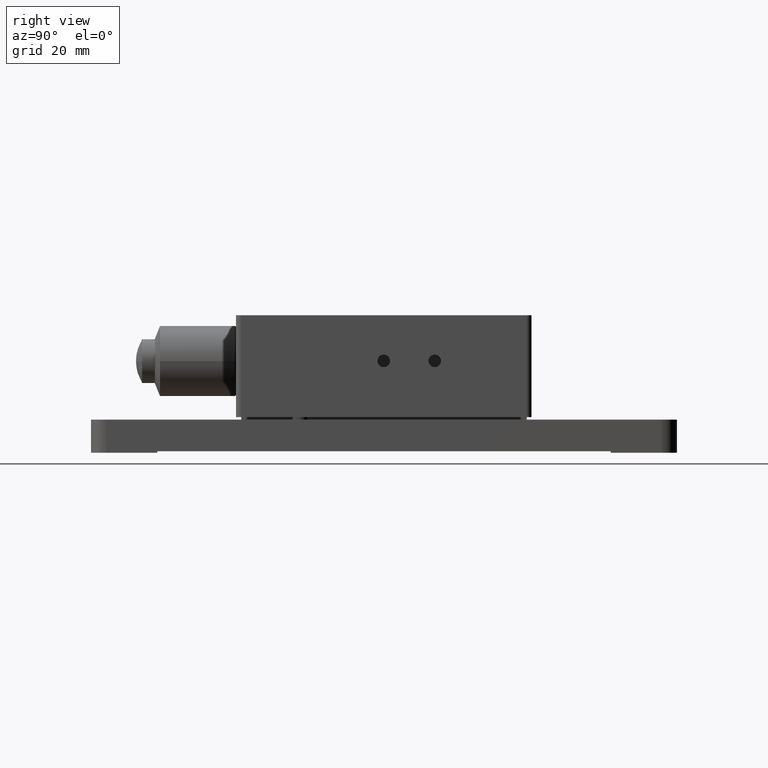
[diagram: clean part render]
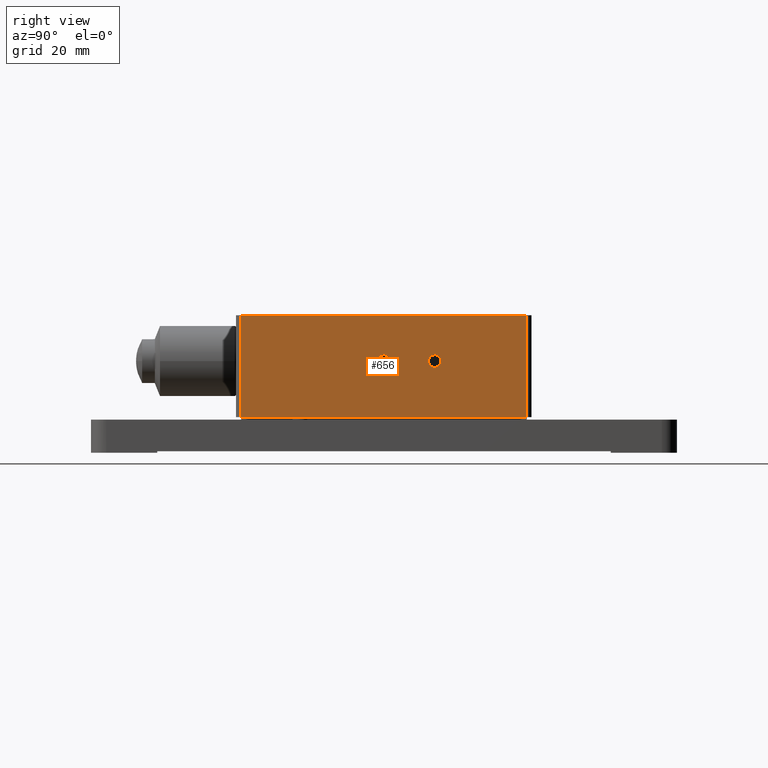
[diagram: same view with one face highlighted and labeled with its STEP entity id]
A machine part, right view. The second image highlights one B-rep face of the part: STEP entity #656.
In plain terms, the highlighted face is a freeform B-spline surface patch.
Its self-contained STEP definition (entity closure, byte-faithful):
#317=FACE_BOUND('',#1988,.T.);
#318=FACE_BOUND('',#1989,.T.);
#656=ADVANCED_FACE('',(#1277,#317,#318),#22470,.T.);
#1277=FACE_OUTER_BOUND('',#1987,.T.);
#1987=EDGE_LOOP('',(#4062,#4063,#4064,#4065));
#1988=EDGE_LOOP('',(#4066,#4067,#4068));
#1989=EDGE_LOOP('',(#4069,#4070,#4071));
#4062=ORIENTED_EDGE('',*,*,#19053,.F.);
#4063=ORIENTED_EDGE('',*,*,#18943,.F.);
#4064=ORIENTED_EDGE('',*,*,#19064,.T.);
#4065=ORIENTED_EDGE('',*,*,#19058,.F.);
#4066=ORIENTED_EDGE('',*,*,#19004,.F.);
#4067=ORIENTED_EDGE('',*,*,#19003,.F.);
#4068=ORIENTED_EDGE('',*,*,#19005,.F.);
#4069=ORIENTED_EDGE('',*,*,#19032,.F.);
#4070=ORIENTED_EDGE('',*,*,#19031,.F.);
#4071=ORIENTED_EDGE('',*,*,#19033,.F.);
#7212=PCURVE('',#22464,#10618);
#7290=PCURVE('',#22813,#10696);
#7295=PCURVE('',#22814,#10701);
#7296=PCURVE('',#22814,#10702);
#7365=PCURVE('',#22825,#10771);
#7370=PCURVE('',#22826,#10776);
#7371=PCURVE('',#22826,#10777);
#7449=PCURVE('',#22841,#10855);
#7456=PCURVE('',#22469,#10862);
#7468=PCURVE('',#22470,#10874);
#7469=PCURVE('',#22470,#10875);
#7470=PCURVE('',#22470,#10876);
#7471=PCURVE('',#22470,#10877);
#7472=PCURVE('',#22470,#10878);
#7473=PCURVE('',#22470,#10879);
#7474=PCURVE('',#22470,#10880);
#7475=PCURVE('',#22470,#10881);
#7476=PCURVE('',#22470,#10882);
#7477=PCURVE('',#22470,#10883);
#7480=PCURVE('',#22842,#10886);
#10618=DEFINITIONAL_REPRESENTATION('',(#14053),#46445);
#10696=DEFINITIONAL_REPRESENTATION('',(#14095),#46445);
#10701=DEFINITIONAL_REPRESENTATION('',(#14100),#46445);
#10702=DEFINITIONAL_REPRESENTATION('',(#14101),#46445);
#10771=DEFINITIONAL_REPRESENTATION('',(#14188),#46445);
#10776=DEFINITIONAL_REPRESENTATION('',(#14193),#46445);
#10777=DEFINITIONAL_REPRESENTATION('',(#14194),#46445);
#10855=DEFINITIONAL_REPRESENTATION('',(#14288),#46445);
#10862=DEFINITIONAL_REPRESENTATION('',(#14297),#46445);
#10874=DEFINITIONAL_REPRESENTATION('',(#14308),#46445);
#10875=DEFINITIONAL_REPRESENTATION('',(#14309),#46445);
#10876=DEFINITIONAL_REPRESENTATION('',(#14311),#46445);
#10877=DEFINITIONAL_REPRESENTATION('',(#14312),#46445);
#10878=DEFINITIONAL_REPRESENTATION('',(#20773),#46445);
#10879=DEFINITIONAL_REPRESENTATION('',(#20774),#46445);
#10880=DEFINITIONAL_REPRESENTATION('',(#20775),#46445);
#10881=DEFINITIONAL_REPRESENTATION('',(#20776),#46445);
#10882=DEFINITIONAL_REPRESENTATION('',(#20777),#46445);
#10883=DEFINITIONAL_REPRESENTATION('',(#20778),#46445);
#10886=DEFINITIONAL_REPRESENTATION('',(#14316),#46445);
#14052=B_SPLINE_CURVE_WITH_KNOTS('',1,(#35796,#35797),.UNSPECIFIED.,.F.,
 .F.,(2,2),(0.,56.),.UNSPECIFIED.);
#14053=B_SPLINE_CURVE_WITH_KNOTS('',1,(#35798,#35799),.UNSPECIFIED.,.F.,
 .F.,(2,2),(0.,56.),.UNSPECIFIED.);
#14095=B_SPLINE_CURVE_WITH_KNOTS('',1,(#36264,#36265),.UNSPECIFIED.,.F.,
 .F.,(2,2),(-7.7251763351773,-5.79388225138298),.UNSPECIFIED.);
#14100=B_SPLINE_CURVE_WITH_KNOTS('',1,(#36277,#36278),.UNSPECIFIED.,.F.,
 .F.,(2,2),(-5.79388225138298,-3.86258816758865),.UNSPECIFIED.);
#14101=B_SPLINE_CURVE_WITH_KNOTS('',1,(#36284,#36285),.UNSPECIFIED.,.F.,
 .F.,(2,2),(-3.86258816758865,0.),.UNSPECIFIED.);
#14188=B_SPLINE_CURVE_WITH_KNOTS('',1,(#36690,#36691),.UNSPECIFIED.,.F.,
 .F.,(2,2),(-7.7251763351773,-5.79388225138298),.UNSPECIFIED.);
#14193=B_SPLINE_CURVE_WITH_KNOTS('',1,(#36703,#36704),.UNSPECIFIED.,.F.,
 .F.,(2,2),(-5.79388225138298,-3.86258816758865),.UNSPECIFIED.);
#14194=B_SPLINE_CURVE_WITH_KNOTS('',1,(#36710,#36711),.UNSPECIFIED.,.F.,
 .F.,(2,2),(-3.86258816758865,0.),.UNSPECIFIED.);
#14287=B_SPLINE_CURVE_WITH_KNOTS('',1,(#36910,#36911),.UNSPECIFIED.,.F.,
 .F.,(2,2),(0.,20.),.UNSPECIFIED.);
#14288=B_SPLINE_CURVE_WITH_KNOTS('',1,(#36912,#36913),.UNSPECIFIED.,.F.,
 .F.,(2,2),(0.,20.),.UNSPECIFIED.);
#14296=B_SPLINE_CURVE_WITH_KNOTS('',1,(#36941,#36942),.UNSPECIFIED.,.F.,
 .F.,(2,2),(-56.,0.),.UNSPECIFIED.);
#14297=B_SPLINE_CURVE_WITH_KNOTS('',1,(#36943,#36944),.UNSPECIFIED.,.F.,
 .F.,(2,2),(-56.,0.),.UNSPECIFIED.);
#14308=B_SPLINE_CURVE_WITH_KNOTS('',1,(#36985,#36986),.UNSPECIFIED.,.F.,
 .F.,(2,2),(0.,20.),.UNSPECIFIED.);
#14309=B_SPLINE_CURVE_WITH_KNOTS('',1,(#36987,#36988),.UNSPECIFIED.,.F.,
 .F.,(2,2),(0.,56.),.UNSPECIFIED.);
#14310=B_SPLINE_CURVE_WITH_KNOTS('',1,(#36989,#36990),.UNSPECIFIED.,.F.,
 .F.,(2,2),(-20.,0.),.UNSPECIFIED.);
#14311=B_SPLINE_CURVE_WITH_KNOTS('',1,(#36991,#36992),.UNSPECIFIED.,.F.,
 .F.,(2,2),(-20.,0.),.UNSPECIFIED.);
#14312=B_SPLINE_CURVE_WITH_KNOTS('',1,(#36993,#36994),.UNSPECIFIED.,.F.,
 .F.,(2,2),(-56.,0.),.UNSPECIFIED.);
#14316=B_SPLINE_CURVE_WITH_KNOTS('',1,(#37023,#37024),.UNSPECIFIED.,.F.,
 .F.,(2,2),(-20.,0.),.UNSPECIFIED.);
#17206=SURFACE_CURVE('',#14052,(#7212,#7469),.PCURVE_S1.);
#17266=SURFACE_CURVE('',#20747,(#7290,#7473),.PCURVE_S1.);
#17267=SURFACE_CURVE('',#20748,(#7295,#7472),.PCURVE_S1.);
#17268=SURFACE_CURVE('',#20749,(#7296,#7474),.PCURVE_S1.);
#17294=SURFACE_CURVE('',#20757,(#7365,#7476),.PCURVE_S1.);
#17295=SURFACE_CURVE('',#20758,(#7370,#7475),.PCURVE_S1.);
#17296=SURFACE_CURVE('',#20759,(#7371,#7477),.PCURVE_S1.);
#17316=SURFACE_CURVE('',#14287,(#7449,#7468),.PCURVE_S1.);
#17321=SURFACE_CURVE('',#14296,(#7456,#7471),.PCURVE_S1.);
#17327=SURFACE_CURVE('',#14310,(#7470,#7480),.PCURVE_S1.);
#18943=EDGE_CURVE('',#21770,#21771,#17206,.T.);
#19003=EDGE_CURVE('',#21811,#21810,#17266,.T.);
#19004=EDGE_CURVE('',#21810,#21848,#17267,.T.);
#19005=EDGE_CURVE('',#21848,#21811,#17268,.T.);
#19031=EDGE_CURVE('',#21825,#21824,#17294,.T.);
#19032=EDGE_CURVE('',#21824,#21849,#17295,.T.);
#19033=EDGE_CURVE('',#21849,#21825,#17296,.T.);
#19053=EDGE_CURVE('',#21771,#21839,#17316,.T.);
#19058=EDGE_CURVE('',#21839,#21844,#17321,.T.);
#19064=EDGE_CURVE('',#21770,#21844,#17327,.T.);
#20747=(
BOUNDED_CURVE()
B_SPLINE_CURVE(2,(#36261,#36262,#36263),.UNSPECIFIED.,.F.,.F.)
B_SPLINE_CURVE_WITH_KNOTS((3,3),(-7.7251763351773,-5.79388225138298),
 .UNSPECIFIED.)
CURVE()
GEOMETRIC_REPRESENTATION_ITEM()
RATIONAL_B_SPLINE_CURVE((1.,0.707106781186548,1.))
REPRESENTATION_ITEM('')
);
#20748=(
BOUNDED_CURVE()
B_SPLINE_CURVE(2,(#36274,#36275,#36276),.UNSPECIFIED.,.F.,.F.)
B_SPLINE_CURVE_WITH_KNOTS((3,3),(-5.79388225138298,-3.86258816758865),
 .UNSPECIFIED.)
CURVE()
GEOMETRIC_REPRESENTATION_ITEM()
RATIONAL_B_SPLINE_CURVE((1.,0.707106781186546,1.))
REPRESENTATION_ITEM('')
);
#20749=(
BOUNDED_CURVE()
B_SPLINE_CURVE(2,(#36279,#36280,#36281,#36282,#36283),.UNSPECIFIED.,.F.,
 .F.)
B_SPLINE_CURVE_WITH_KNOTS((3,2,3),(-3.86258816758865,-1.93129408379432,
0.),.UNSPECIFIED.)
CURVE()
GEOMETRIC_REPRESENTATION_ITEM()
RATIONAL_B_SPLINE_CURVE((1.,0.707106781186548,1.,0.707106781186548,1.))
REPRESENTATION_ITEM('')
);
#20757=(
BOUNDED_CURVE()
B_SPLINE_CURVE(2,(#36687,#36688,#36689),.UNSPECIFIED.,.F.,.F.)
B_SPLINE_CURVE_WITH_KNOTS((3,3),(-7.7251763351773,-5.79388225138298),
 .UNSPECIFIED.)
CURVE()
GEOMETRIC_REPRESENTATION_ITEM()
RATIONAL_B_SPLINE_CURVE((1.,0.707106781186547,1.))
REPRESENTATION_ITEM('')
);
#20758=(
BOUNDED_CURVE()
B_SPLINE_CURVE(2,(#36700,#36701,#36702),.UNSPECIFIED.,.F.,.F.)
B_SPLINE_CURVE_WITH_KNOTS((3,3),(-5.79388225138298,-3.86258816758865),
 .UNSPECIFIED.)
CURVE()
GEOMETRIC_REPRESENTATION_ITEM()
RATIONAL_B_SPLINE_CURVE((1.,0.707106781186548,1.))
REPRESENTATION_ITEM('')
);
#20759=(
BOUNDED_CURVE()
B_SPLINE_CURVE(2,(#36705,#36706,#36707,#36708,#36709),.UNSPECIFIED.,.F.,
 .F.)
B_SPLINE_CURVE_WITH_KNOTS((3,2,3),(-3.86258816758865,-1.93129408379432,
0.),.UNSPECIFIED.)
CURVE()
GEOMETRIC_REPRESENTATION_ITEM()
RATIONAL_B_SPLINE_CURVE((1.,0.707106781186548,1.,0.707106781186548,1.))
REPRESENTATION_ITEM('')
);
#20773=(
BOUNDED_CURVE()
B_SPLINE_CURVE(2,(#36995,#36996,#36997),.UNSPECIFIED.,.F.,.F.)
B_SPLINE_CURVE_WITH_KNOTS((3,3),(-5.79388225138298,-3.86258816758865),
 .UNSPECIFIED.)
CURVE()
GEOMETRIC_REPRESENTATION_ITEM()
RATIONAL_B_SPLINE_CURVE((1.,0.707106781186548,1.))
REPRESENTATION_ITEM('')
);
#20774=(
BOUNDED_CURVE()
B_SPLINE_CURVE(2,(#36998,#36999,#37000),.UNSPECIFIED.,.F.,.F.)
B_SPLINE_CURVE_WITH_KNOTS((3,3),(-7.7251763351773,-5.79388225138298),
 .UNSPECIFIED.)
CURVE()
GEOMETRIC_REPRESENTATION_ITEM()
RATIONAL_B_SPLINE_CURVE((1.,0.707106781186548,1.))
REPRESENTATION_ITEM('')
);
#20775=(
BOUNDED_CURVE()
B_SPLINE_CURVE(2,(#37001,#37002,#37003,#37004,#37005),.UNSPECIFIED.,.F.,
 .F.)
B_SPLINE_CURVE_WITH_KNOTS((3,2,3),(-3.86258816758865,-1.93129408379432,
0.),.UNSPECIFIED.)
CURVE()
GEOMETRIC_REPRESENTATION_ITEM()
RATIONAL_B_SPLINE_CURVE((1.,0.707106781186548,1.,0.707106781186548,1.))
REPRESENTATION_ITEM('')
);
#20776=(
BOUNDED_CURVE()
B_SPLINE_CURVE(2,(#37006,#37007,#37008),.UNSPECIFIED.,.F.,.F.)
B_SPLINE_CURVE_WITH_KNOTS((3,3),(-5.79388225138298,-3.86258816758865),
 .UNSPECIFIED.)
CURVE()
GEOMETRIC_REPRESENTATION_ITEM()
RATIONAL_B_SPLINE_CURVE((1.,0.707106781186547,1.))
REPRESENTATION_ITEM('')
);
#20777=(
BOUNDED_CURVE()
B_SPLINE_CURVE(2,(#37009,#37010,#37011),.UNSPECIFIED.,.F.,.F.)
B_SPLINE_CURVE_WITH_KNOTS((3,3),(-7.7251763351773,-5.79388225138298),
 .UNSPECIFIED.)
CURVE()
GEOMETRIC_REPRESENTATION_ITEM()
RATIONAL_B_SPLINE_CURVE((1.,0.707106781186548,1.))
REPRESENTATION_ITEM('')
);
#20778=(
BOUNDED_CURVE()
B_SPLINE_CURVE(2,(#37012,#37013,#37014,#37015,#37016),.UNSPECIFIED.,.F.,
 .F.)
B_SPLINE_CURVE_WITH_KNOTS((3,2,3),(-3.86258816758865,-1.93129408379432,
0.),.UNSPECIFIED.)
CURVE()
GEOMETRIC_REPRESENTATION_ITEM()
RATIONAL_B_SPLINE_CURVE((1.,0.707106781186548,1.,0.707106781186548,1.))
REPRESENTATION_ITEM('')
);
#21770=VERTEX_POINT('',#29005);
#21771=VERTEX_POINT('',#29006);
#21810=VERTEX_POINT('',#29045);
#21811=VERTEX_POINT('',#29046);
#21824=VERTEX_POINT('',#29059);
#21825=VERTEX_POINT('',#29060);
#21839=VERTEX_POINT('',#29074);
#21844=VERTEX_POINT('',#29079);
#21848=VERTEX_POINT('',#29083);
#21849=VERTEX_POINT('',#29084);
#22464=B_SPLINE_SURFACE_WITH_KNOTS('',1,1,((#26127,#26128),(#26129,#26130)),
 .UNSPECIFIED.,.F.,.F.,.F.,(2,2),(2,2),(-32.52,32.5200000000001),(-34.92,
34.92),.UNSPECIFIED.);
#22469=B_SPLINE_SURFACE_WITH_KNOTS('',1,1,((#26725,#26726),(#26727,#26728)),
 .UNSPECIFIED.,.F.,.F.,.F.,(2,2),(2,2),(-8.27439560439561,61.5656043956044),
(10.9299999999999,28.5700000000001),.UNSPECIFIED.);
#22470=B_SPLINE_SURFACE_WITH_KNOTS('',1,1,((#26729,#26730),(#26731,#26732)),
 .UNSPECIFIED.,.F.,.F.,.F.,(2,2),(2,2),(-10.37,13.87),(-33.72,33.72),
 .UNSPECIFIED.);
#22813=(
BOUNDED_SURFACE()
B_SPLINE_SURFACE(1,2,((#26187,#26188,#26189,#26190,#26191,#26192,#26193,
#26194,#26195),(#26196,#26197,#26198,#26199,#26200,#26201,#26202,#26203,
#26204)),.UNSPECIFIED.,.F.,.F.,.F.)
B_SPLINE_SURFACE_WITH_KNOTS((2,2),(3,2,2,2,3),(0.,6.95999999999989),(0.,
1.5707963267949,3.14159265358979,4.71238898038469,6.28318530717959),
 .UNSPECIFIED.)
GEOMETRIC_REPRESENTATION_ITEM()
RATIONAL_B_SPLINE_SURFACE(((1.,0.707106781186548,1.,0.707106781186548,1.,
0.707106781186548,1.,0.707106781186548,1.),(1.,0.707106781186548,1.,0.707106781186548,
1.,0.707106781186548,1.,0.707106781186548,1.)))
REPRESENTATION_ITEM('')
SURFACE()
);
#22814=(
BOUNDED_SURFACE()
B_SPLINE_SURFACE(1,2,((#26205,#26206,#26207,#26208,#26209,#26210,#26211,
#26212,#26213),(#26214,#26215,#26216,#26217,#26218,#26219,#26220,#26221,
#26222)),.UNSPECIFIED.,.F.,.F.,.F.)
B_SPLINE_SURFACE_WITH_KNOTS((2,2),(3,2,2,2,3),(0.,6.95999999999989),(0.,
1.5707963267949,3.14159265358979,4.71238898038469,6.28318530717959),
 .UNSPECIFIED.)
GEOMETRIC_REPRESENTATION_ITEM()
RATIONAL_B_SPLINE_SURFACE(((1.,0.707106781186548,1.,0.707106781186548,1.,
0.707106781186548,1.,0.707106781186548,1.),(1.,0.707106781186548,1.,0.707106781186548,
1.,0.707106781186548,1.,0.707106781186548,1.)))
REPRESENTATION_ITEM('')
SURFACE()
);
#22825=(
BOUNDED_SURFACE()
B_SPLINE_SURFACE(1,2,((#26419,#26420,#26421,#26422,#26423,#26424,#26425,
#26426,#26427),(#26428,#26429,#26430,#26431,#26432,#26433,#26434,#26435,
#26436)),.UNSPECIFIED.,.F.,.F.,.F.)
B_SPLINE_SURFACE_WITH_KNOTS((2,2),(3,2,2,2,3),(0.,6.95999999999989),(0.,
1.5707963267949,3.14159265358979,4.71238898038469,6.28318530717959),
 .UNSPECIFIED.)
GEOMETRIC_REPRESENTATION_ITEM()
RATIONAL_B_SPLINE_SURFACE(((1.,0.707106781186548,1.,0.707106781186548,1.,
0.707106781186548,1.,0.707106781186548,1.),(1.,0.707106781186548,1.,0.707106781186548,
1.,0.707106781186548,1.,0.707106781186548,1.)))
REPRESENTATION_ITEM('')
SURFACE()
);
#22826=(
BOUNDED_SURFACE()
B_SPLINE_SURFACE(1,2,((#26437,#26438,#26439,#26440,#26441,#26442,#26443,
#26444,#26445),(#26446,#26447,#26448,#26449,#26450,#26451,#26452,#26453,
#26454)),.UNSPECIFIED.,.F.,.F.,.F.)
B_SPLINE_SURFACE_WITH_KNOTS((2,2),(3,2,2,2,3),(0.,6.95999999999989),(0.,
1.5707963267949,3.14159265358979,4.71238898038469,6.28318530717959),
 .UNSPECIFIED.)
GEOMETRIC_REPRESENTATION_ITEM()
RATIONAL_B_SPLINE_SURFACE(((1.,0.707106781186548,1.,0.707106781186548,1.,
0.707106781186548,1.,0.707106781186548,1.),(1.,0.707106781186548,1.,0.707106781186548,
1.,0.707106781186548,1.,0.707106781186548,1.)))
REPRESENTATION_ITEM('')
SURFACE()
);
#22841=(
BOUNDED_SURFACE()
B_SPLINE_SURFACE(2,1,((#26707,#26708),(#26709,#26710),(#26711,#26712),(#26713,
#26714),(#26715,#26716),(#26717,#26718),(#26719,#26720),(#26721,#26722),
(#26723,#26724)),.UNSPECIFIED.,.T.,.F.,.F.)
B_SPLINE_SURFACE_WITH_KNOTS((3,2,2,2,3),(2,2),(0.,1.5707963267949,3.14159265358979,
4.71238898038469,6.28318530717959),(0.,24.24),.UNSPECIFIED.)
GEOMETRIC_REPRESENTATION_ITEM()
RATIONAL_B_SPLINE_SURFACE(((1.,1.),(0.707106781186548,0.707106781186548),
(1.,1.),(0.707106781186548,0.707106781186548),(1.,1.),(0.707106781186548,
0.707106781186548),(1.,1.),(0.707106781186548,0.707106781186548),(1.,1.)))
REPRESENTATION_ITEM('')
SURFACE()
);
#22842=(
BOUNDED_SURFACE()
B_SPLINE_SURFACE(2,1,((#26733,#26734),(#26735,#26736),(#26737,#26738),(#26739,
#26740),(#26741,#26742),(#26743,#26744),(#26745,#26746),(#26747,#26748),
(#26749,#26750)),.UNSPECIFIED.,.T.,.F.,.F.)
B_SPLINE_SURFACE_WITH_KNOTS((3,2,2,2,3),(2,2),(0.,1.5707963267949,3.14159265358979,
4.71238898038469,6.28318530717959),(0.,24.24),.UNSPECIFIED.)
GEOMETRIC_REPRESENTATION_ITEM()
RATIONAL_B_SPLINE_SURFACE(((1.,1.),(0.707106781186548,0.707106781186548),
(1.,1.),(0.707106781186548,0.707106781186548),(1.,1.),(0.707106781186548,
0.707106781186548),(1.,1.),(0.707106781186548,0.707106781186548),(1.,1.)))
REPRESENTATION_ITEM('')
SURFACE()
);
#26127=CARTESIAN_POINT('',(-31.8929506502019,12.2331964156235,50.57));
#26128=CARTESIAN_POINT('',(-31.8929506502019,12.2331964156235,-19.27));
#26129=CARTESIAN_POINT('',(33.1470493497981,12.2331964156235,50.57));
#26130=CARTESIAN_POINT('',(33.1470493497981,12.2331964156235,-19.27));
#26187=CARTESIAN_POINT('',(28.307049349798,2.00369641562348,15.65));
#26188=CARTESIAN_POINT('',(28.307049349798,2.00369641562348,16.8795));
#26189=CARTESIAN_POINT('',(28.307049349798,3.23319641562348,16.8795));
#26190=CARTESIAN_POINT('',(28.307049349798,4.46269641562348,16.8795));
#26191=CARTESIAN_POINT('',(28.307049349798,4.46269641562348,15.65));
#26192=CARTESIAN_POINT('',(28.307049349798,4.46269641562348,14.4205));
#26193=CARTESIAN_POINT('',(28.307049349798,3.23319641562348,14.4205));
#26194=CARTESIAN_POINT('',(28.307049349798,2.00369641562348,14.4205));
#26195=CARTESIAN_POINT('',(28.307049349798,2.00369641562348,15.65));
#26196=CARTESIAN_POINT('',(21.3470493497981,2.00369641562348,15.65));
#26197=CARTESIAN_POINT('',(21.3470493497981,2.00369641562348,16.8795));
#26198=CARTESIAN_POINT('',(21.3470493497981,3.23319641562348,16.8795));
#26199=CARTESIAN_POINT('',(21.3470493497981,4.46269641562348,16.8795));
#26200=CARTESIAN_POINT('',(21.3470493497981,4.46269641562348,15.65));
#26201=CARTESIAN_POINT('',(21.3470493497981,4.46269641562348,14.4205));
#26202=CARTESIAN_POINT('',(21.3470493497981,3.23319641562348,14.4205));
#26203=CARTESIAN_POINT('',(21.3470493497981,2.00369641562348,14.4205));
#26204=CARTESIAN_POINT('',(21.3470493497981,2.00369641562348,15.65));
#26205=CARTESIAN_POINT('',(28.307049349798,2.00369641562348,15.65));
#26206=CARTESIAN_POINT('',(28.307049349798,2.00369641562348,16.8795));
#26207=CARTESIAN_POINT('',(28.307049349798,3.23319641562348,16.8795));
#26208=CARTESIAN_POINT('',(28.307049349798,4.46269641562348,16.8795));
#26209=CARTESIAN_POINT('',(28.307049349798,4.46269641562348,15.65));
#26210=CARTESIAN_POINT('',(28.307049349798,4.46269641562348,14.4205));
#26211=CARTESIAN_POINT('',(28.307049349798,3.23319641562348,14.4205));
#26212=CARTESIAN_POINT('',(28.307049349798,2.00369641562348,14.4205));
#26213=CARTESIAN_POINT('',(28.307049349798,2.00369641562348,15.65));
#26214=CARTESIAN_POINT('',(21.3470493497981,2.00369641562348,15.65));
#26215=CARTESIAN_POINT('',(21.3470493497981,2.00369641562348,16.8795));
#26216=CARTESIAN_POINT('',(21.3470493497981,3.23319641562348,16.8795));
#26217=CARTESIAN_POINT('',(21.3470493497981,4.46269641562348,16.8795));
#26218=CARTESIAN_POINT('',(21.3470493497981,4.46269641562348,15.65));
#26219=CARTESIAN_POINT('',(21.3470493497981,4.46269641562348,14.4205));
#26220=CARTESIAN_POINT('',(21.3470493497981,3.23319641562348,14.4205));
#26221=CARTESIAN_POINT('',(21.3470493497981,2.00369641562348,14.4205));
#26222=CARTESIAN_POINT('',(21.3470493497981,2.00369641562348,15.65));
#26419=CARTESIAN_POINT('',(28.307049349798,2.00369641562348,5.65));
#26420=CARTESIAN_POINT('',(28.307049349798,2.00369641562348,6.8795));
#26421=CARTESIAN_POINT('',(28.307049349798,3.23319641562348,6.8795));
#26422=CARTESIAN_POINT('',(28.307049349798,4.46269641562348,6.8795));
#26423=CARTESIAN_POINT('',(28.307049349798,4.46269641562348,5.65));
#26424=CARTESIAN_POINT('',(28.307049349798,4.46269641562348,4.4205));
#26425=CARTESIAN_POINT('',(28.307049349798,3.23319641562348,4.4205));
#26426=CARTESIAN_POINT('',(28.307049349798,2.00369641562348,4.4205));
#26427=CARTESIAN_POINT('',(28.307049349798,2.00369641562348,5.65));
#26428=CARTESIAN_POINT('',(21.3470493497981,2.00369641562348,5.65));
#26429=CARTESIAN_POINT('',(21.3470493497981,2.00369641562348,6.8795));
#26430=CARTESIAN_POINT('',(21.3470493497981,3.23319641562348,6.8795));
#26431=CARTESIAN_POINT('',(21.3470493497981,4.46269641562348,6.8795));
#26432=CARTESIAN_POINT('',(21.3470493497981,4.46269641562348,5.65));
#26433=CARTESIAN_POINT('',(21.3470493497981,4.46269641562348,4.4205));
#26434=CARTESIAN_POINT('',(21.3470493497981,3.23319641562348,4.4205));
#26435=CARTESIAN_POINT('',(21.3470493497981,2.00369641562348,4.4205));
#26436=CARTESIAN_POINT('',(21.3470493497981,2.00369641562348,5.65));
#26437=CARTESIAN_POINT('',(28.307049349798,2.00369641562348,5.65));
#26438=CARTESIAN_POINT('',(28.307049349798,2.00369641562348,6.8795));
#26439=CARTESIAN_POINT('',(28.307049349798,3.23319641562348,6.8795));
#26440=CARTESIAN_POINT('',(28.307049349798,4.46269641562348,6.8795));
#26441=CARTESIAN_POINT('',(28.307049349798,4.46269641562348,5.65));
#26442=CARTESIAN_POINT('',(28.307049349798,4.46269641562348,4.4205));
#26443=CARTESIAN_POINT('',(28.307049349798,3.23319641562348,4.4205));
#26444=CARTESIAN_POINT('',(28.307049349798,2.00369641562348,4.4205));
#26445=CARTESIAN_POINT('',(28.307049349798,2.00369641562348,5.65));
#26446=CARTESIAN_POINT('',(21.3470493497981,2.00369641562348,5.65));
#26447=CARTESIAN_POINT('',(21.3470493497981,2.00369641562348,6.8795));
#26448=CARTESIAN_POINT('',(21.3470493497981,3.23319641562348,6.8795));
#26449=CARTESIAN_POINT('',(21.3470493497981,4.46269641562348,6.8795));
#26450=CARTESIAN_POINT('',(21.3470493497981,4.46269641562348,5.65));
#26451=CARTESIAN_POINT('',(21.3470493497981,4.46269641562348,4.4205));
#26452=CARTESIAN_POINT('',(21.3470493497981,3.23319641562348,4.4205));
#26453=CARTESIAN_POINT('',(21.3470493497981,2.00369641562348,4.4205));
#26454=CARTESIAN_POINT('',(21.3470493497981,2.00369641562348,5.65));
#26707=CARTESIAN_POINT('',(25.627049349798,14.3531964156235,-12.35));
#26708=CARTESIAN_POINT('',(25.627049349798,-9.88680358437652,-12.35));
#26709=CARTESIAN_POINT('',(25.627049349798,14.3531964156235,-13.35));
#26710=CARTESIAN_POINT('',(25.627049349798,-9.88680358437652,-13.35));
#26711=CARTESIAN_POINT('',(26.627049349798,14.3531964156235,-13.35));
#26712=CARTESIAN_POINT('',(26.627049349798,-9.88680358437652,-13.35));
#26713=CARTESIAN_POINT('',(27.627049349798,14.3531964156235,-13.35));
#26714=CARTESIAN_POINT('',(27.627049349798,-9.88680358437652,-13.35));
#26715=CARTESIAN_POINT('',(27.627049349798,14.3531964156235,-12.35));
#26716=CARTESIAN_POINT('',(27.627049349798,-9.88680358437652,-12.35));
#26717=CARTESIAN_POINT('',(27.627049349798,14.3531964156235,-11.35));
#26718=CARTESIAN_POINT('',(27.627049349798,-9.88680358437652,-11.35));
#26719=CARTESIAN_POINT('',(26.627049349798,14.3531964156235,-11.35));
#26720=CARTESIAN_POINT('',(26.627049349798,-9.88680358437652,-11.35));
#26721=CARTESIAN_POINT('',(25.627049349798,14.3531964156235,-11.35));
#26722=CARTESIAN_POINT('',(25.627049349798,-9.88680358437652,-11.35));
#26723=CARTESIAN_POINT('',(25.627049349798,14.3531964156235,-12.35));
#26724=CARTESIAN_POINT('',(25.627049349798,-9.88680358437652,-12.35));
#26725=CARTESIAN_POINT('',(11.557049349798,-7.76680358437653,50.57));
#26726=CARTESIAN_POINT('',(29.1970493497981,-7.76680358437653,50.57));
#26727=CARTESIAN_POINT('',(11.557049349798,-7.76680358437653,-19.27));
#26728=CARTESIAN_POINT('',(29.1970493497981,-7.76680358437653,-19.27));
#26729=CARTESIAN_POINT('',(27.627049349798,14.3531964156235,49.37));
#26730=CARTESIAN_POINT('',(27.627049349798,14.3531964156235,-18.07));
#26731=CARTESIAN_POINT('',(27.627049349798,-9.88680358437652,49.37));
#26732=CARTESIAN_POINT('',(27.627049349798,-9.88680358437652,-18.07));
#26733=CARTESIAN_POINT('',(25.6270493497981,-9.88680358437652,43.65));
#26734=CARTESIAN_POINT('',(25.6270493497981,14.3531964156235,43.65));
#26735=CARTESIAN_POINT('',(25.6270493497981,-9.88680358437652,44.65));
#26736=CARTESIAN_POINT('',(25.6270493497981,14.3531964156235,44.65));
#26737=CARTESIAN_POINT('',(26.6270493497981,-9.88680358437652,44.65));
#26738=CARTESIAN_POINT('',(26.6270493497981,14.3531964156235,44.65));
#26739=CARTESIAN_POINT('',(27.6270493497981,-9.88680358437652,44.65));
#26740=CARTESIAN_POINT('',(27.6270493497981,14.3531964156235,44.65));
#26741=CARTESIAN_POINT('',(27.6270493497981,-9.88680358437652,43.65));
#26742=CARTESIAN_POINT('',(27.6270493497981,14.3531964156235,43.65));
#26743=CARTESIAN_POINT('',(27.6270493497981,-9.88680358437652,42.65));
#26744=CARTESIAN_POINT('',(27.6270493497981,14.3531964156235,42.65));
#26745=CARTESIAN_POINT('',(26.6270493497981,-9.88680358437652,42.65));
#26746=CARTESIAN_POINT('',(26.6270493497981,14.3531964156235,42.65));
#26747=CARTESIAN_POINT('',(25.6270493497981,-9.88680358437652,42.65));
#26748=CARTESIAN_POINT('',(25.6270493497981,14.3531964156235,42.65));
#26749=CARTESIAN_POINT('',(25.6270493497981,-9.88680358437652,43.65));
#26750=CARTESIAN_POINT('',(25.6270493497981,14.3531964156235,43.65));
#29005=CARTESIAN_POINT('',(27.6270493497981,12.2331964156235,43.65));
#29006=CARTESIAN_POINT('',(27.627049349798,12.2331964156235,-12.35));
#29045=CARTESIAN_POINT('',(27.627049349798,2.00369641562348,15.65));
#29046=CARTESIAN_POINT('',(27.627049349798,3.23319641562348,16.8795));
#29059=CARTESIAN_POINT('',(27.627049349798,2.00369641562348,5.65));
#29060=CARTESIAN_POINT('',(27.627049349798,3.23319641562348,6.8795));
#29074=CARTESIAN_POINT('',(27.627049349798,-7.76680358437651,-12.35));
#29079=CARTESIAN_POINT('',(27.6270493497981,-7.76680358437652,43.65));
#29083=CARTESIAN_POINT('',(27.627049349798,3.23319641562348,14.4205));
#29084=CARTESIAN_POINT('',(27.627049349798,3.23319641562348,4.4205));
#35796=CARTESIAN_POINT('',(27.6270493497981,12.2331964156235,43.65));
#35797=CARTESIAN_POINT('',(27.627049349798,12.2331964156235,-12.35));
#35798=CARTESIAN_POINT('',(27.,-28.));
#35799=CARTESIAN_POINT('',(27.,28.));
#36261=CARTESIAN_POINT('',(27.627049349798,3.23319641562348,16.8795));
#36262=CARTESIAN_POINT('',(27.627049349798,2.00369641562348,16.8795));
#36263=CARTESIAN_POINT('',(27.627049349798,2.00369641562348,15.65));
#36264=CARTESIAN_POINT('',(0.679999999999993,1.5707963267949));
#36265=CARTESIAN_POINT('',(0.679999999999993,0.));
#36274=CARTESIAN_POINT('',(27.627049349798,2.00369641562347,15.65));
#36275=CARTESIAN_POINT('',(27.627049349798,2.00369641562347,14.4205));
#36276=CARTESIAN_POINT('',(27.627049349798,3.23319641562348,14.4205));
#36277=CARTESIAN_POINT('',(0.679999999999993,6.28318530717959));
#36278=CARTESIAN_POINT('',(0.679999999999993,4.71238898038469));
#36279=CARTESIAN_POINT('',(27.627049349798,3.23319641562348,14.4205));
#36280=CARTESIAN_POINT('',(27.627049349798,4.46269641562348,14.4205));
#36281=CARTESIAN_POINT('',(27.627049349798,4.46269641562348,15.65));
#36282=CARTESIAN_POINT('',(27.627049349798,4.46269641562348,16.8795));
#36283=CARTESIAN_POINT('',(27.627049349798,3.23319641562348,16.8795));
#36284=CARTESIAN_POINT('',(0.679999999999993,4.71238898038469));
#36285=CARTESIAN_POINT('',(0.679999999999993,1.5707963267949));
#36687=CARTESIAN_POINT('',(27.627049349798,3.23319641562348,6.8795));
#36688=CARTESIAN_POINT('',(27.627049349798,2.00369641562348,6.8795));
#36689=CARTESIAN_POINT('',(27.627049349798,2.00369641562348,5.65));
#36690=CARTESIAN_POINT('',(0.679999999999993,1.5707963267949));
#36691=CARTESIAN_POINT('',(0.679999999999993,0.));
#36700=CARTESIAN_POINT('',(27.627049349798,2.00369641562348,5.65));
#36701=CARTESIAN_POINT('',(27.627049349798,2.00369641562348,4.4205));
#36702=CARTESIAN_POINT('',(27.627049349798,3.23319641562348,4.4205));
#36703=CARTESIAN_POINT('',(0.679999999999993,6.28318530717959));
#36704=CARTESIAN_POINT('',(0.679999999999993,4.71238898038469));
#36705=CARTESIAN_POINT('',(27.627049349798,3.23319641562348,4.4205));
#36706=CARTESIAN_POINT('',(27.627049349798,4.46269641562348,4.4205));
#36707=CARTESIAN_POINT('',(27.627049349798,4.46269641562348,5.65));
#36708=CARTESIAN_POINT('',(27.627049349798,4.46269641562348,6.8795));
#36709=CARTESIAN_POINT('',(27.627049349798,3.23319641562348,6.8795));
#36710=CARTESIAN_POINT('',(0.679999999999993,4.71238898038469));
#36711=CARTESIAN_POINT('',(0.679999999999993,1.5707963267949));
#36910=CARTESIAN_POINT('',(27.627049349798,12.2331964156235,-12.35));
#36911=CARTESIAN_POINT('',(27.627049349798,-7.76680358437651,-12.35));
#36912=CARTESIAN_POINT('',(3.14159265358979,2.12));
#36913=CARTESIAN_POINT('',(3.14159265358979,22.12));
#36941=CARTESIAN_POINT('',(27.627049349798,-7.76680358437651,-12.35));
#36942=CARTESIAN_POINT('',(27.6270493497981,-7.76680358437652,43.65));
#36943=CARTESIAN_POINT('',(54.6456043956044,27.));
#36944=CARTESIAN_POINT('',(-1.3543956043956,27.));
#36985=CARTESIAN_POINT('',(-8.25000000000002,28.));
#36986=CARTESIAN_POINT('',(11.75,28.));
#36987=CARTESIAN_POINT('',(-8.25000000000002,-28.));
#36988=CARTESIAN_POINT('',(-8.25000000000002,28.));
#36989=CARTESIAN_POINT('',(27.6270493497981,12.2331964156235,43.65));
#36990=CARTESIAN_POINT('',(27.6270493497981,-7.76680358437652,43.65));
#36991=CARTESIAN_POINT('',(-8.25000000000002,-28.));
#36992=CARTESIAN_POINT('',(11.75,-28.));
#36993=CARTESIAN_POINT('',(11.75,28.));
#36994=CARTESIAN_POINT('',(11.75,-28.));
#36995=CARTESIAN_POINT('',(1.9795,0.));
#36996=CARTESIAN_POINT('',(1.9795,1.2295));
#36997=CARTESIAN_POINT('',(0.75,1.2295));
#36998=CARTESIAN_POINT('',(0.75,-1.2295));
#36999=CARTESIAN_POINT('',(1.9795,-1.2295));
#37000=CARTESIAN_POINT('',(1.9795,0.));
#37001=CARTESIAN_POINT('',(0.75,1.2295));
#37002=CARTESIAN_POINT('',(-0.479500000000001,1.2295));
#37003=CARTESIAN_POINT('',(-0.4795,0.));
#37004=CARTESIAN_POINT('',(-0.479500000000001,-1.2295));
#37005=CARTESIAN_POINT('',(0.75,-1.2295));
#37006=CARTESIAN_POINT('',(1.9795,10.));
#37007=CARTESIAN_POINT('',(1.9795,11.2295));
#37008=CARTESIAN_POINT('',(0.75,11.2295));
#37009=CARTESIAN_POINT('',(0.75,8.7705));
#37010=CARTESIAN_POINT('',(1.9795,8.7705));
#37011=CARTESIAN_POINT('',(1.9795,10.));
#37012=CARTESIAN_POINT('',(0.75,11.2295));
#37013=CARTESIAN_POINT('',(-0.479500000000001,11.2295));
#37014=CARTESIAN_POINT('',(-0.4795,10.));
#37015=CARTESIAN_POINT('',(-0.479500000000001,8.7705));
#37016=CARTESIAN_POINT('',(0.75,8.7705));
#37023=CARTESIAN_POINT('',(3.14159265358979,22.12));
#37024=CARTESIAN_POINT('',(3.14159265358979,2.12000000000001));
#46445=(
GEOMETRIC_REPRESENTATION_CONTEXT(2)
PARAMETRIC_REPRESENTATION_CONTEXT()
REPRESENTATION_CONTEXT('pspace','')
);